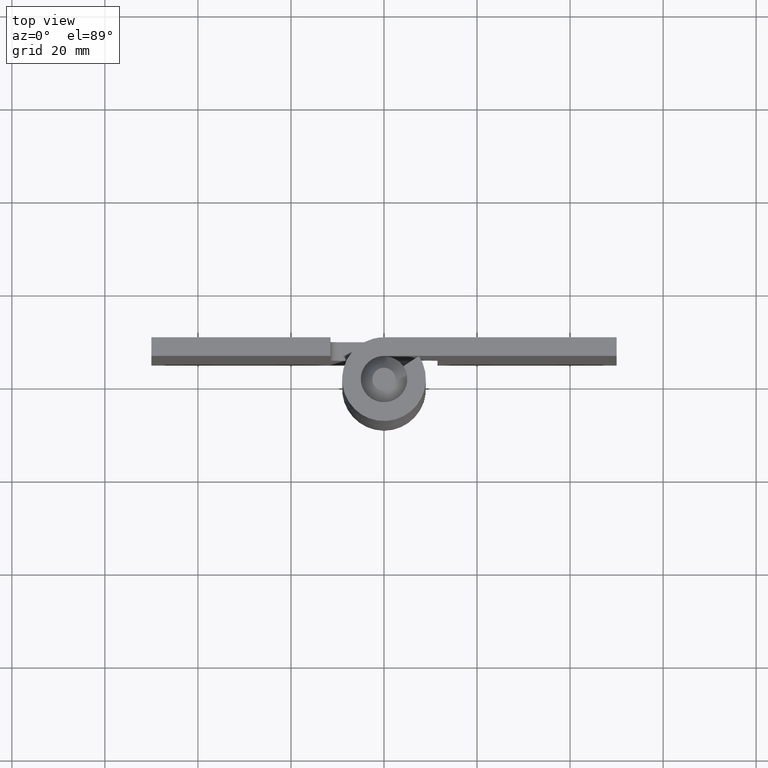
[diagram: clean part render]
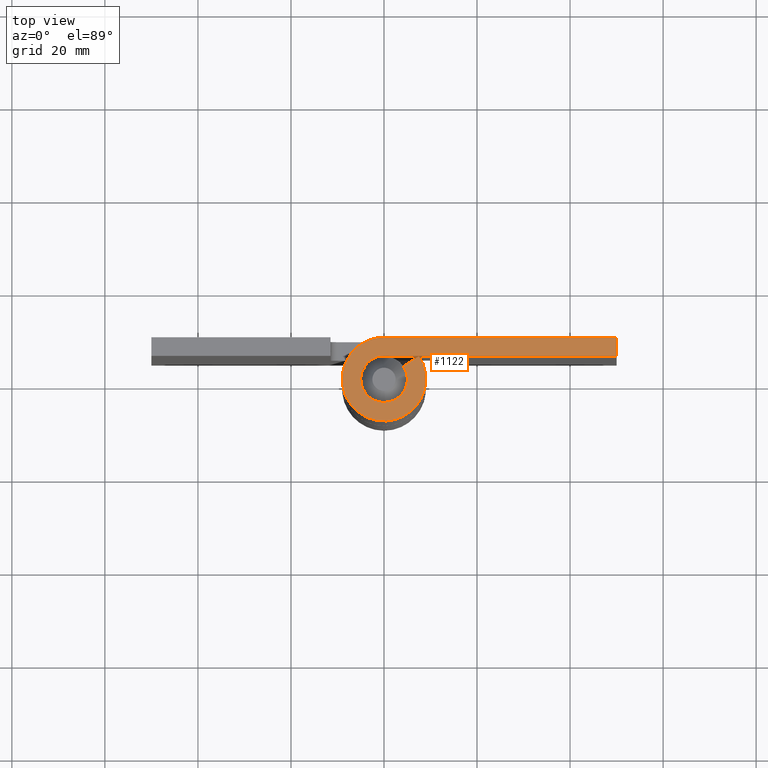
[diagram: same view with one face highlighted and labeled with its STEP entity id]
A machine part, top view. The second image highlights one B-rep face of the part: STEP entity #1122.
In plain terms, the highlighted face is a freeform B-spline surface patch.
Its self-contained STEP definition (entity closure, byte-faithful):
#1045=CARTESIAN_POINT('',(-11.945583239179330,-9.893227378137238,120.000015000000000));
#1046=CARTESIAN_POINT('',(52.946981694324720,-9.893227378137238,120.000015000000000));
#1047=CARTESIAN_POINT('',(-11.945583239179330,9.898821067114769,120.000015000000000));
#1048=CARTESIAN_POINT('',(52.946981694324720,9.898821067114769,120.000015000000000));
#1049=B_SPLINE_SURFACE_WITH_KNOTS('',1,1,((#1045,#1047),(#1046,#1048)),.UNSPECIFIED.,.F.,.F.,.U.,(2,2),(2,2),(0.0,64.892564933504048),(0.0,19.792048445252011),.UNSPECIFIED.);
#1050=CARTESIAN_POINT('',(7.516481889820530,4.950000000000000,120.000015000000000));
#1051=VERTEX_POINT('',#1050);
#1052=CARTESIAN_POINT('',(0.0,9.0,120.000015000000000));
#1053=VERTEX_POINT('',#1052);
#1054=CARTESIAN_POINT('',(7.516481889820528,4.950000000000002,120.000015000000000));
#1055=CARTESIAN_POINT('',(11.372849226319257,-0.905821261674366,120.000014999999980));
#1056=CARTESIAN_POINT('',(6.638175985501286,-6.077385917112227,120.000015000000000));
#1057=CARTESIAN_POINT('',(1.903502744683314,-11.248950572550088,120.000014999999980));
#1058=CARTESIAN_POINT('',(-4.269074841227310,-7.923067587746555,120.000015000000000));
#1059=CARTESIAN_POINT('',(-10.441652427137932,-4.597184602943023,120.000014999999980));
#1060=CARTESIAN_POINT('',(-8.726614701295084,2.201407698528487,120.000015000000000));
#1061=CARTESIAN_POINT('',(-7.011576975452235,9.0,120.000014999999980));
#1062=CARTESIAN_POINT('',(0.0,9.0,120.000015000000000));
#1070=(BOUNDED_CURVE()B_SPLINE_CURVE(2,(#1054,#1055,#1056,#1057,#1058,#1059,#1060,#1061,#1062),.UNSPECIFIED.,.F.,.U.)B_SPLINE_CURVE_WITH_KNOTS((3,2,2,2,3),(0.0,0.250000000000000,0.500000000000000,0.750000000000000,1.0),.UNSPECIFIED.)CURVE()GEOMETRIC_REPRESENTATION_ITEM()RATIONAL_B_SPLINE_CURVE((1.0,0.788860207955774,1.0,0.788860207955774,1.0,0.788860207955774,1.0,0.788860207955774,1.0))REPRESENTATION_ITEM(''));
#1071=EDGE_CURVE('',#1051,#1053,#1070,.T.);
#1072=ORIENTED_EDGE('',*,*,#1071,.F.);
#1073=CARTESIAN_POINT('',(4.175823272122515,2.750000000000000,120.000015000000000));
#1074=VERTEX_POINT('',#1073);
#1075=CARTESIAN_POINT('',(4.175823272122515,2.750000000000000,120.000015000000000));
#1076=CARTESIAN_POINT('',(7.516481889820530,4.950000000000000,120.000015000000000));
#1077=QUASI_UNIFORM_CURVE('',1,(#1075,#1076),.UNSPECIFIED.,.F.,.U.);
#1078=EDGE_CURVE('',#1074,#1051,#1077,.T.);
#1079=ORIENTED_EDGE('',*,*,#1078,.F.);
#1080=CARTESIAN_POINT('',(0.0,5.0,120.000015000000000));
#1081=VERTEX_POINT('',#1080);
#1082=CARTESIAN_POINT('',(4.175823272122516,2.750000000000002,120.000015000000000));
#1083=CARTESIAN_POINT('',(6.318249570177366,-0.503234034263535,120.000014999999980));
#1084=CARTESIAN_POINT('',(3.687875547500715,-3.376325509506793,120.000015000000000));
#1085=CARTESIAN_POINT('',(1.057501524824064,-6.249416984750050,120.000014999999980));
#1086=CARTESIAN_POINT('',(-2.371708245126283,-4.401704215414753,120.000015000000000));
#1087=CARTESIAN_POINT('',(-5.800918015076630,-2.553991446079456,120.000014999999980));
#1088=CARTESIAN_POINT('',(-4.848119278497269,1.223004276960271,120.000015000000000));
#1089=CARTESIAN_POINT('',(-3.895320541917909,4.999999999999999,120.000014999999980));
#1090=CARTESIAN_POINT('',(0.0,5.0,120.000015000000000));
#1098=(BOUNDED_CURVE()B_SPLINE_CURVE(2,(#1082,#1083,#1084,#1085,#1086,#1087,#1088,#1089,#1090),.UNSPECIFIED.,.F.,.U.)B_SPLINE_CURVE_WITH_KNOTS((3,2,2,2,3),(0.0,0.250000000000000,0.500000000000000,0.750000000000000,1.0),.UNSPECIFIED.)CURVE()GEOMETRIC_REPRESENTATION_ITEM()RATIONAL_B_SPLINE_CURVE((1.0,0.788860207955774,1.0,0.788860207955774,1.0,0.788860207955774,1.0,0.788860207955774,1.0))REPRESENTATION_ITEM(''));
#1099=EDGE_CURVE('',#1074,#1081,#1098,.T.);
#1100=ORIENTED_EDGE('',*,*,#1099,.T.);
#1101=CARTESIAN_POINT('',(50.0,5.0,120.000015000000000));
#1102=VERTEX_POINT('',#1101);
#1103=CARTESIAN_POINT('',(50.0,5.0,120.000015000000000));
#1104=CARTESIAN_POINT('',(0.0,5.0,120.000015000000000));
#1105=QUASI_UNIFORM_CURVE('',1,(#1103,#1104),.UNSPECIFIED.,.F.,.U.);
#1106=EDGE_CURVE('',#1102,#1081,#1105,.T.);
#1107=ORIENTED_EDGE('',*,*,#1106,.F.);
#1108=CARTESIAN_POINT('',(50.0,9.0,120.000015000000000));
#1109=VERTEX_POINT('',#1108);
#1110=CARTESIAN_POINT('',(50.0,9.0,120.000015000000000));
#1111=CARTESIAN_POINT('',(50.0,5.0,120.000015000000000));
#1112=QUASI_UNIFORM_CURVE('',1,(#1110,#1111),.UNSPECIFIED.,.F.,.U.);
#1113=EDGE_CURVE('',#1109,#1102,#1112,.T.);
#1114=ORIENTED_EDGE('',*,*,#1113,.F.);
#1115=CARTESIAN_POINT('',(0.0,9.0,120.000015000000000));
#1116=CARTESIAN_POINT('',(50.0,9.0,120.000015000000000));
#1117=QUASI_UNIFORM_CURVE('',1,(#1115,#1116),.UNSPECIFIED.,.F.,.U.);
#1118=EDGE_CURVE('',#1053,#1109,#1117,.T.);
#1119=ORIENTED_EDGE('',*,*,#1118,.F.);
#1120=EDGE_LOOP('',(#1072,#1079,#1100,#1107,#1114,#1119));
#1121=FACE_OUTER_BOUND('',#1120,.T.);
#1122=ADVANCED_FACE('',(#1121),#1049,.T.);